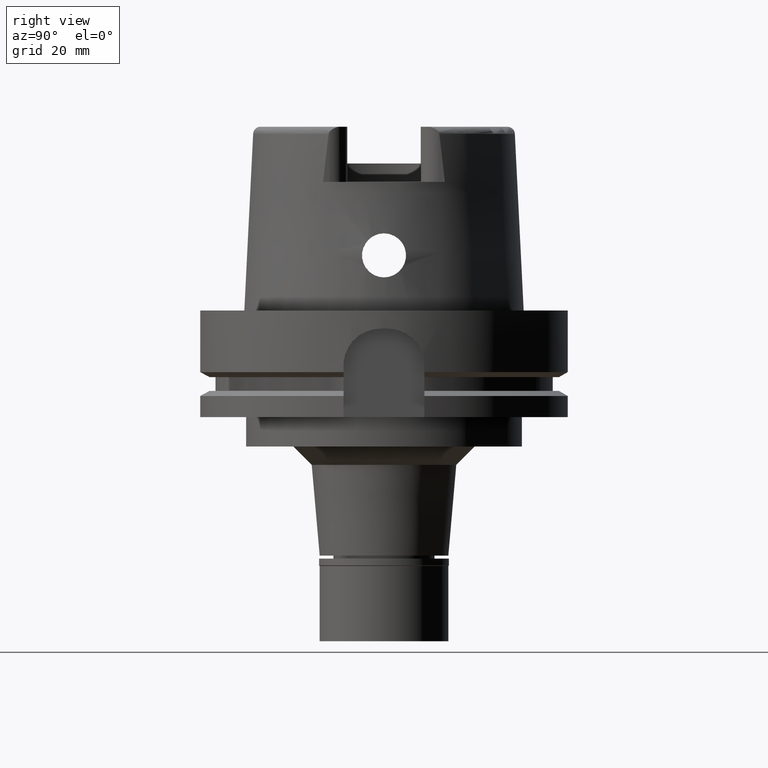
[diagram: clean part render]
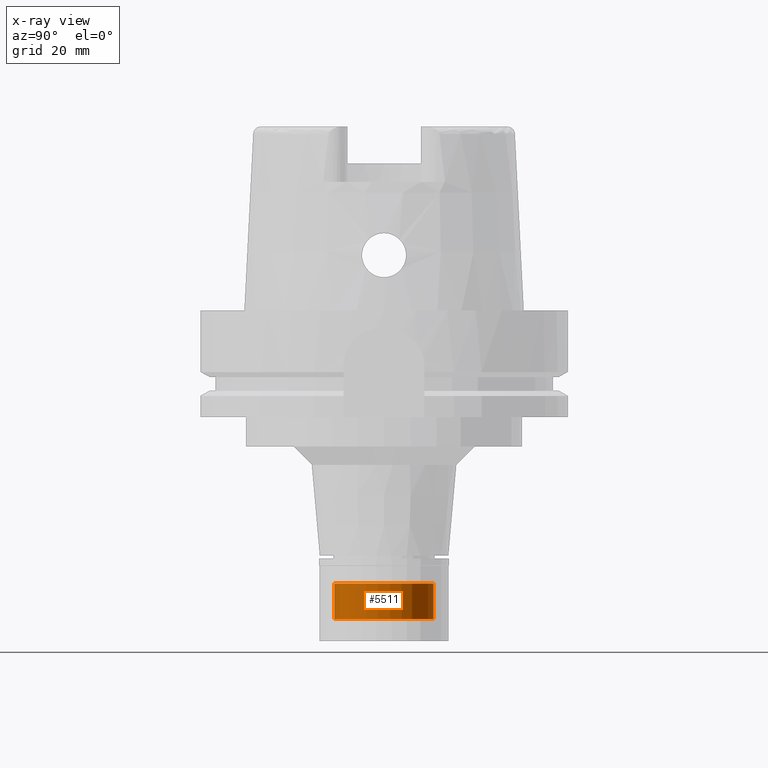
[diagram: x-ray — body ghosted, one internal face saturated and labeled with its STEP entity id]
A machine part, right view, then the same camera in x-ray: the body is ghosted and one INTERNAL B-rep face — a face not visible from any outside direction — is saturated and labeled: STEP entity #5511.
In plain terms, the highlighted cylindrical surface (partial cylindrical patch) has radius 13.5 mm, axis along (0, 0, -1).
Its self-contained STEP definition (entity closure, byte-faithful):
#47 = AXIS2_PLACEMENT_3D ( 'NONE', #2019, #5491, #3347 ) ;
#58 = DIRECTION ( 'NONE',  ( 0.0000000000000000000, 1.000000000000000000, 0.0000000000000000000 ) ) ;
#182 = CARTESIAN_POINT ( 'NONE',  ( 0.0000000000000000000, -13.50000000000000000, -16.50000000000000000 ) ) ;
#205 = DIRECTION ( 'NONE',  ( 0.0000000000000000000, 0.0000000000000000000, 1.000000000000000000 ) ) ;
#264 = EDGE_CURVE ( 'NONE', #5293, #4389, #5474, .T. ) ;
#481 = EDGE_CURVE ( 'NONE', #5293, #3164, #3291, .T. ) ;
#649 = EDGE_CURVE ( 'NONE', #4389, #3979, #2952, .T. ) ;
#714 = FACE_OUTER_BOUND ( 'NONE', #2170, .T. ) ;
#1031 = VECTOR ( 'NONE', #4265, 1000.000000000000000 ) ;
#1772 = ORIENTED_EDGE ( 'NONE', *, *, #5313, .T. ) ;
#2019 = CARTESIAN_POINT ( 'NONE',  ( 0.0000000000000000000, 0.0000000000000000000, 0.0000000000000000000 ) ) ;
#2170 = EDGE_LOOP ( 'NONE', ( #5380, #4443, #1772, #5585 ) ) ;
#2332 = CARTESIAN_POINT ( 'NONE',  ( 0.0000000000000000000, 13.50000000000000000, -16.50000000000000000 ) ) ;
#2570 = VECTOR ( 'NONE', #3742, 1000.000000000000000 ) ;
#2784 = CARTESIAN_POINT ( 'NONE',  ( 0.0000000000000000000, 0.0000000000000000000, -6.799999999999999822 ) ) ;
#2952 = LINE ( 'NONE', #4698, #1031 ) ;
#2969 = CARTESIAN_POINT ( 'NONE',  ( 0.0000000000000000000, -13.50000000000000000, -6.799999999999999822 ) ) ;
#3164 = VERTEX_POINT ( 'NONE', #4765 ) ;
#3291 = LINE ( 'NONE', #5046, #2570 ) ;
#3347 = DIRECTION ( 'NONE',  ( 0.0000000000000000000, -1.000000000000000000, 0.0000000000000000000 ) ) ;
#3742 = DIRECTION ( 'NONE',  ( 0.0000000000000000000, 0.0000000000000000000, 1.000000000000000000 ) ) ;
#3842 = AXIS2_PLACEMENT_3D ( 'NONE', #4768, #3962, #58 ) ;
#3962 = DIRECTION ( 'NONE',  ( 0.0000000000000000000, 0.0000000000000000000, -1.000000000000000000 ) ) ;
#3979 = VERTEX_POINT ( 'NONE', #2969 ) ;
#4184 = CYLINDRICAL_SURFACE ( 'NONE', #47, 13.50000000000000000 ) ;
#4265 = DIRECTION ( 'NONE',  ( 0.0000000000000000000, 0.0000000000000000000, 1.000000000000000000 ) ) ;
#4389 = VERTEX_POINT ( 'NONE', #182 ) ;
#4424 = AXIS2_PLACEMENT_3D ( 'NONE', #2784, #205, #5075 ) ;
#4443 = ORIENTED_EDGE ( 'NONE', *, *, #649, .T. ) ;
#4698 = CARTESIAN_POINT ( 'NONE',  ( 0.0000000000000000000, -13.50000000000000000, -16.50000000000000000 ) ) ;
#4765 = CARTESIAN_POINT ( 'NONE',  ( 0.0000000000000000000, 13.50000000000000000, -6.799999999999999822 ) ) ;
#4768 = CARTESIAN_POINT ( 'NONE',  ( 0.0000000000000000000, 0.0000000000000000000, -16.50000000000000000 ) ) ;
#4784 = CIRCLE ( 'NONE', #4424, 13.50000000000000000 ) ;
#5046 = CARTESIAN_POINT ( 'NONE',  ( 0.0000000000000000000, 13.50000000000000000, -16.50000000000000000 ) ) ;
#5075 = DIRECTION ( 'NONE',  ( 0.0000000000000000000, -1.000000000000000000, 0.0000000000000000000 ) ) ;
#5293 = VERTEX_POINT ( 'NONE', #2332 ) ;
#5313 = EDGE_CURVE ( 'NONE', #3979, #3164, #4784, .T. ) ;
#5380 = ORIENTED_EDGE ( 'NONE', *, *, #264, .T. ) ;
#5474 = CIRCLE ( 'NONE', #3842, 13.50000000000000000 ) ;
#5491 = DIRECTION ( 'NONE',  ( 0.0000000000000000000, 0.0000000000000000000, -1.000000000000000000 ) ) ;
#5511 = ADVANCED_FACE ( 'NONE', ( #714 ), #4184, .F. ) ;
#5585 = ORIENTED_EDGE ( 'NONE', *, *, #481, .F. ) ;